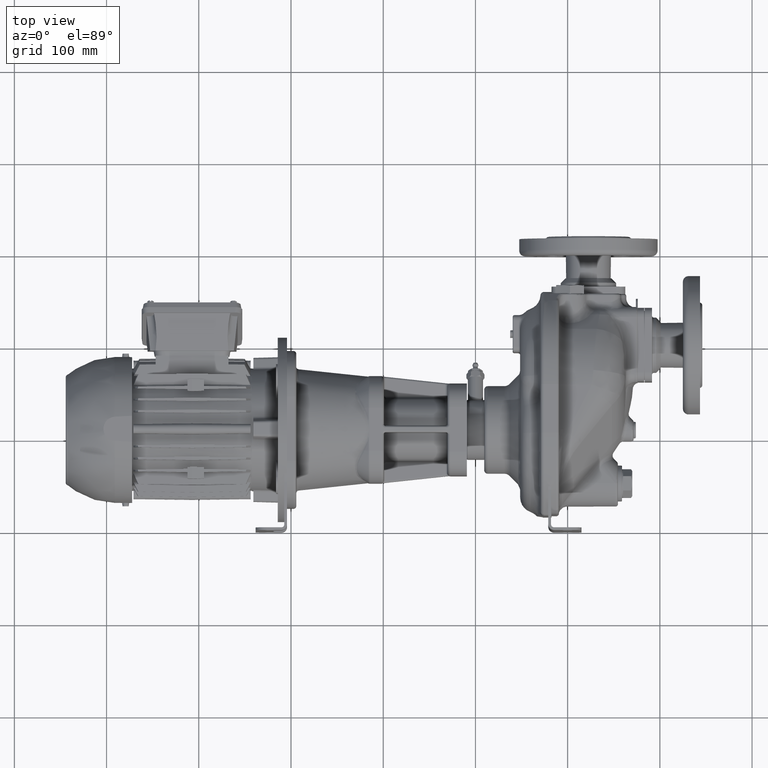
[diagram: clean part render]
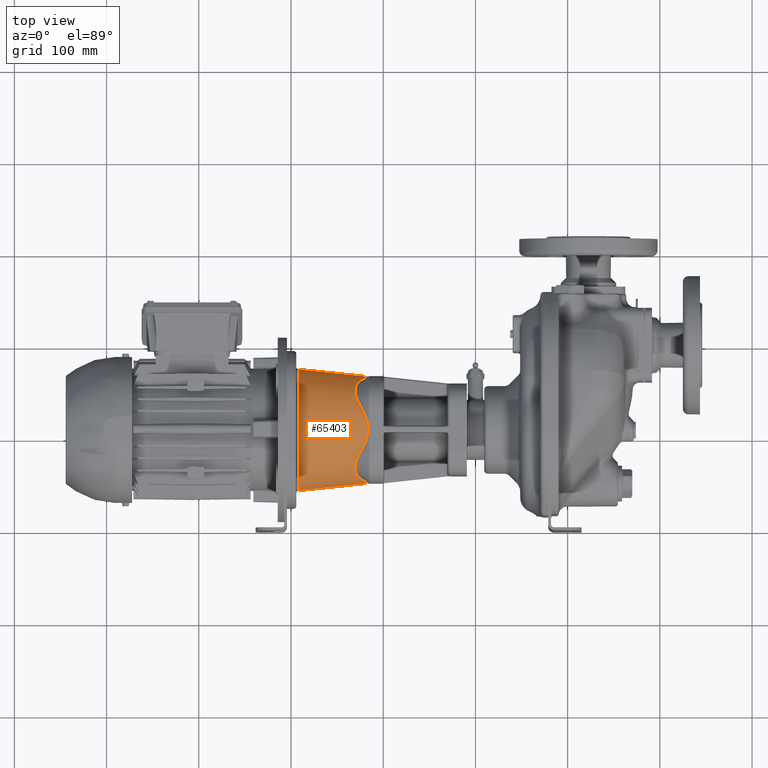
[diagram: same view with one face highlighted and labeled with its STEP entity id]
A machine part, top view. The second image highlights one B-rep face of the part: STEP entity #65403.
In plain terms, the highlighted conical surface has half-angle 6 deg.
Its self-contained STEP definition (entity closure, byte-faithful):
#12274=DIRECTION('',(9.945218953667E-1,1.045284632831E-1,0.E0));
#12275=VECTOR('',#12274,7.573120619177E1);
#12276=CARTESIAN_POINT('',(-2.916135853898E2,4.425481215539E1,0.E0));
#12277=LINE('',#12276,#12275);
#12291=CARTESIAN_POINT('',(-2.162972426696E2,5.217087876119E1,0.E0));
#12493=CARTESIAN_POINT('',(-2.162972426696E2,1.678291212388E2,0.E0));
#12518=CARTESIAN_POINT('',(-2.916135853898E2,1.1E2,0.E0));
#12519=DIRECTION('',(1.E0,0.E0,0.E0));
#12520=DIRECTION('',(0.E0,1.E0,0.E0));
#12521=AXIS2_PLACEMENT_3D('',#12518,#12519,#12520);
#12528=DIRECTION('',(9.945218953667E-1,-1.045284632831E-1,0.E0));
#12529=VECTOR('',#12528,7.573120619177E1);
#12530=CARTESIAN_POINT('',(-2.916135853898E2,1.757451878446E2,0.E0));
#12531=LINE('',#12530,#12529);
#12532=CARTESIAN_POINT('',(-2.178097378126E2,1.672505349841E2,
9.219269410111E0));
#12533=CARTESIAN_POINT('',(-2.177005226865E2,1.673099493707E2,
8.778112235931E0));
#12534=CARTESIAN_POINT('',(-2.174915754634E2,1.674150170355E2,
7.924130658812E0));
#12535=CARTESIAN_POINT('',(-2.172055254057E2,1.675396672499E2,
6.700549844646E0));
#12536=CARTESIAN_POINT('',(-2.169694715655E2,1.676296734439E2,
5.616791392303E0));
#12537=CARTESIAN_POINT('',(-2.167799745554E2,1.676942146431E2,
4.660967148453E0));
#12538=CARTESIAN_POINT('',(-2.166316234725E2,1.677400778674E2,
3.816670825657E0));
#12539=CARTESIAN_POINT('',(-2.165178106400E2,1.677725873519E2,
3.063959217461E0));
#12540=CARTESIAN_POINT('',(-2.164319662985E2,1.677955953305E2,
2.378711210692E0));
#12541=CARTESIAN_POINT('',(-2.163695598297E2,1.678115161030E2,
1.743964345912E0));
#12542=CARTESIAN_POINT('',(-2.163270718760E2,1.678219707538E2,
1.142382641696E0));
#12543=CARTESIAN_POINT('',(-2.163025002709E2,1.678278726256E2,
5.633297576727E-1));
#12544=CARTESIAN_POINT('',(-2.162972432330E2,1.678291212825E2,
1.859767206219E-1));
#12545=CARTESIAN_POINT('',(-2.162972426696E2,1.678291212388E2,0.E0));
#12547=CARTESIAN_POINT('',(-2.232081546717E2,1.643120255443E2,
2.188490304259E1));
#12548=CARTESIAN_POINT('',(-2.229975200607E2,1.644267440128E2,
2.154097052883E1));
#12549=CARTESIAN_POINT('',(-2.225890865486E2,1.646491753191E2,
2.085614097833E1));
#12550=CARTESIAN_POINT('',(-2.220143612581E2,1.649621301244E2,
1.983939274068E1));
#12551=CARTESIAN_POINT('',(-2.214757642771E2,1.652553785563E2,
1.883237292535E1));
#12552=CARTESIAN_POINT('',(-2.209719358071E2,1.655296669165E2,
1.783486057273E1));
#12553=CARTESIAN_POINT('',(-2.205015176788E2,1.657857406005E2,
1.684647944565E1));
#12554=CARTESIAN_POINT('',(-2.200632380201E2,1.660242969797E2,
1.586682939850E1));
#12555=CARTESIAN_POINT('',(-2.196559156630E2,1.662459837265E2,
1.489551216629E1));
#12556=CARTESIAN_POINT('',(-2.192784449588E2,1.664514068261E2,
1.393210561728E1));
#12557=CARTESIAN_POINT('',(-2.189297914882E2,1.666411328566E2,
1.297615286718E1));
#12558=CARTESIAN_POINT('',(-2.186090234181E2,1.668156723822E2,
1.202726252441E1));
#12559=CARTESIAN_POINT('',(-2.183152378263E2,1.669755193639E2,
1.108490174240E1));
#12560=CARTESIAN_POINT('',(-2.180476512485E2,1.671211032180E2,
1.014866873998E1));
#12561=CARTESIAN_POINT('',(-2.178862596533E2,1.672089055462E2,
9.528370867960E0));
#12562=CARTESIAN_POINT('',(-2.178097378126E2,1.672505349841E2,
9.219269410111E0));
#12564=CARTESIAN_POINT('',(-2.232081546717E2,1.318849030426E2,
5.431202554433E1));
#12565=CARTESIAN_POINT('',(-2.234349152213E2,1.322551664876E2,
5.418852436362E1));
#12566=CARTESIAN_POINT('',(-2.238755909167E2,1.329853657703E2,
5.393584133920E1));
#12567=CARTESIAN_POINT('',(-2.244981363058E2,1.340488395764E2,
5.354169726927E1));
#12568=CARTESIAN_POINT('',(-2.250835036914E2,1.350816337722E2,
5.313360777020E1));
#12569=CARTESIAN_POINT('',(-2.256326320819E2,1.360842986017E2,
5.271287126854E1));
#12570=CARTESIAN_POINT('',(-2.261465952011E2,1.370575955245E2,
5.228063969931E1));
#12571=CARTESIAN_POINT('',(-2.266266066729E2,1.380025663499E2,
5.183785016427E1));
#12572=CARTESIAN_POINT('',(-2.270738242720E2,1.389201858638E2,
5.138537249808E1));
#12573=CARTESIAN_POINT('',(-2.274894309560E2,1.398115271598E2,
5.092393363120E1));
#12574=CARTESIAN_POINT('',(-2.278745847926E2,1.406776807102E2,
5.045415082782E1));
#12575=CARTESIAN_POINT('',(-2.282304112199E2,1.415197490246E2,
4.997653493043E1));
#12576=CARTESIAN_POINT('',(-2.285579940461E2,1.423388392002E2,
4.949149395475E1));
#12577=CARTESIAN_POINT('',(-2.288583650015E2,1.431360491078E2,
4.899934163308E1));
#12578=CARTESIAN_POINT('',(-2.291324979025E2,1.439124600571E2,
4.850030334956E1));
#12579=CARTESIAN_POINT('',(-2.293813037674E2,1.446691303773E2,
4.799452205436E1));
#12580=CARTESIAN_POINT('',(-2.296056267614E2,1.454070905462E2,
4.748206357209E1));
#12581=CARTESIAN_POINT('',(-2.298062412679E2,1.461273390972E2,
4.696292170517E1));
#12582=CARTESIAN_POINT('',(-2.299838497135E2,1.468308395729E2,
4.643702277059E1));
#12583=CARTESIAN_POINT('',(-2.301390813552E2,1.475185174349E2,
4.590423034825E1));
#12584=CARTESIAN_POINT('',(-2.302724923790E2,1.481912585432E2,
4.536434897099E1));
#12585=CARTESIAN_POINT('',(-2.303845646918E2,1.488499083849E2,
4.481712684774E1));
#12586=CARTESIAN_POINT('',(-2.304757057531E2,1.494952712423E2,
4.426225853956E1));
#12587=CARTESIAN_POINT('',(-2.305462484598E2,1.501281093928E2,
4.369938738592E1));
#12588=CARTESIAN_POINT('',(-2.305964510096E2,1.507491420915E2,
4.312810791043E1));
#12589=CARTESIAN_POINT('',(-2.306264984536E2,1.513590459802E2,
4.254796687896E1));
#12590=CARTESIAN_POINT('',(-2.306365020409E2,1.519584544882E2,
4.195846460267E1));
#12591=CARTESIAN_POINT('',(-2.306264987893E2,1.525479574444E2,
4.135905574588E1));
#12592=CARTESIAN_POINT('',(-2.305964515920E2,1.531280997988E2,
4.074915077821E1));
#12593=CARTESIAN_POINT('',(-2.305462491983E2,1.536993805696E2,
4.012811694224E1));
#12594=CARTESIAN_POINT('',(-2.304757065747E2,1.542622529408E2,
3.949527765817E1));
#12595=CARTESIAN_POINT('',(-2.303845655265E2,1.548171223910E2,
3.884991367160E1));
#12596=CARTESIAN_POINT('',(-2.302724931592E2,1.553643455795E2,
3.819126271036E1));
#12597=CARTESIAN_POINT('',(-2.301390820198E2,1.559042279335E2,
3.751852051067E1));
#12598=CARTESIAN_POINT('',(-2.299838502074E2,1.564370212411E2,
3.683084159542E1));
#12599=CARTESIAN_POINT('',(-2.298062415457E2,1.569629209654E2,
3.612734011669E1));
#12600=CARTESIAN_POINT('',(-2.296056267915E2,1.574820635232E2,
3.540709062633E1));
#12601=CARTESIAN_POINT('',(-2.293813035268E2,1.579945225940E2,
3.466912959555E1));
#12602=CARTESIAN_POINT('',(-2.291324973795E2,1.585003043732E2,
3.391245850474E1));
#12603=CARTESIAN_POINT('',(-2.288583641972E2,1.589993430345E2,
3.313604689096E1));
#12604=CARTESIAN_POINT('',(-2.285579929768E2,1.594914956268E2,
3.233883644089E1));
#12605=CARTESIAN_POINT('',(-2.282304099196E2,1.599765367677E2,
3.151974585885E1));
#12606=CARTESIAN_POINT('',(-2.278745833067E2,1.604541527308E2,
3.067767728167E1));
#12607=CARTESIAN_POINT('',(-2.274894293542E2,1.609239354938E2,
2.981152364435E1));
#12608=CARTESIAN_POINT('',(-2.270738226266E2,1.613853742381E2,
2.892018241764E1));
#12609=CARTESIAN_POINT('',(-2.266266050812E2,1.618378516920E2,
2.800256316220E1));
#12610=CARTESIAN_POINT('',(-2.261465938667E2,1.622806408686E2,
2.705759295367E1));
#12611=CARTESIAN_POINT('',(-2.256326307991E2,1.627128722969E2,
2.608429621649E1));
#12612=CARTESIAN_POINT('',(-2.250835025754E2,1.631336085781E2,
2.508163177698E1));
#12613=CARTESIAN_POINT('',(-2.244981354664E2,1.635416978215E2,
2.404883812436E1));
#12614=CARTESIAN_POINT('',(-2.238755903078E2,1.639358416935E2,
2.298536476319E1));
#12615=CARTESIAN_POINT('',(-2.234349149998E2,1.641885244899E2,
2.225516611474E1));
#12616=CARTESIAN_POINT('',(-2.232081546717E2,1.643120255443E2,
2.188490304259E1));
#12618=CARTESIAN_POINT('',(-2.178097378126E2,1.192192694101E2,
5.725053498425E1));
#12619=CARTESIAN_POINT('',(-2.178862596511E2,1.195283708620E2,
5.720890554731E1));
#12620=CARTESIAN_POINT('',(-2.180476512444E2,1.201486687228E2,
5.712110322040E1));
#12621=CARTESIAN_POINT('',(-2.183152378190E2,1.210849017192E2,
5.697551936764E1));
#12622=CARTESIAN_POINT('',(-2.186090234066E2,1.220272624882E2,
5.681567238869E1));
#12623=CARTESIAN_POINT('',(-2.189297914902E2,1.229761528752E2,
5.664113285540E1));
#12624=CARTESIAN_POINT('',(-2.192784449895E2,1.239321056999E2,
5.645140680948E1));
#12625=CARTESIAN_POINT('',(-2.196559157277E2,1.248955123273E2,
5.624598369133E1));
#12626=CARTESIAN_POINT('',(-2.200632381185E2,1.258668296274E2,
5.602429692602E1));
#12627=CARTESIAN_POINT('',(-2.205015178170E2,1.268464797462E2,
5.578574052530E1));
#12628=CARTESIAN_POINT('',(-2.209719359785E2,1.278348609235E2,
5.552966682302E1));
#12629=CARTESIAN_POINT('',(-2.214757644649E2,1.288323732850E2,
5.525537845438E1));
#12630=CARTESIAN_POINT('',(-2.220143614521E2,1.298393930963E2,
5.496213001835E1));
#12631=CARTESIAN_POINT('',(-2.225890867932E2,1.308561413955E2,
5.464917518634E1));
#12632=CARTESIAN_POINT('',(-2.229975201619E2,1.315409706965E2,
5.442674395748E1));
#12633=CARTESIAN_POINT('',(-2.232081546717E2,1.318849030426E2,
5.431202554433E1));
#12635=CARTESIAN_POINT('',(-2.178097378126E2,1.007807305899E2,
5.725053498402E1));
#12636=CARTESIAN_POINT('',(-2.176893768314E2,1.012669097686E2,
5.731601286853E1));
#12637=CARTESIAN_POINT('',(-2.174606703060E2,1.022028283348E2,
5.743000364914E1));
#12638=CARTESIAN_POINT('',(-2.171529704160E2,1.035303760746E2,
5.756113449320E1));
#12639=CARTESIAN_POINT('',(-2.169072417140E2,1.046828120922E2,
5.765185821825E1));
#12640=CARTESIAN_POINT('',(-2.167154289251E2,1.056886742834E2,
5.771481192199E1));
#12641=CARTESIAN_POINT('',(-2.165704924825E2,1.065675933651E2,
5.775790159412E1));
#12642=CARTESIAN_POINT('',(-2.164630425618E2,1.073508650567E2,
5.778745763522E1));
#12643=CARTESIAN_POINT('',(-2.163858105619E2,1.080660772472E2,
5.780745589264E1));
#12644=CARTESIAN_POINT('',(-2.163338039981E2,1.087346416756E2,
5.782034254882E1));
#12645=CARTESIAN_POINT('',(-2.163037866822E2,1.093742561801E2,
5.782756850918E1));
#12646=CARTESIAN_POINT('',(-2.162939706753E2,1.099999992081E2,
5.782989760203E1));
#12647=CARTESIAN_POINT('',(-2.163037866333E2,1.106257419728E2,
5.782756852255E1));
#12648=CARTESIAN_POINT('',(-2.163338038613E2,1.112653562230E2,
5.782034258068E1));
#12649=CARTESIAN_POINT('',(-2.163858103829E2,1.119339207813E2,
5.780745593887E1));
#12650=CARTESIAN_POINT('',(-2.164630422779E2,1.126491326812E2,
5.778745771038E1));
#12651=CARTESIAN_POINT('',(-2.165704921691E2,1.134324044938E2,
5.775790168196E1));
#12652=CARTESIAN_POINT('',(-2.167154283231E2,1.143113224435E2,
5.771481211207E1));
#12653=CARTESIAN_POINT('',(-2.169072417092E2,1.153171879559E2,
5.765185822274E1));
#12654=CARTESIAN_POINT('',(-2.171529704694E2,1.164696242163E2,
5.756113448371E1));
#12655=CARTESIAN_POINT('',(-2.174606712664E2,1.177971756740E2,
5.743000321683E1));
#12656=CARTESIAN_POINT('',(-2.176893772452E2,1.187330919630E2,
5.731601263488E1));
#12657=CARTESIAN_POINT('',(-2.178097378126E2,1.192192694101E2,
5.725053498425E1));
#12659=CARTESIAN_POINT('',(-2.232081546717E2,8.811509695741E1,
5.431202554425E1));
#12660=CARTESIAN_POINT('',(-2.229975200610E2,8.845902947068E1,
5.442674401264E1));
#12661=CARTESIAN_POINT('',(-2.225890865494E2,8.914385902030E1,
5.464917531869E1));
#12662=CARTESIAN_POINT('',(-2.220143612594E2,9.016060725710E1,
5.496213012376E1));
#12663=CARTESIAN_POINT('',(-2.214757642786E2,9.116762707179E1,
5.525537855548E1));
#12664=CARTESIAN_POINT('',(-2.209719358090E2,9.216513942350E1,
5.552966691551E1));
#12665=CARTESIAN_POINT('',(-2.205015176811E2,9.315352054953E1,
5.578574059926E1));
#12666=CARTESIAN_POINT('',(-2.200632380228E2,9.413317059537E1,
5.602429697820E1));
#12667=CARTESIAN_POINT('',(-2.196559156663E2,9.510448782564E1,
5.624598372471E1));
#12668=CARTESIAN_POINT('',(-2.192784449624E2,9.606789437326E1,
5.645140682413E1));
#12669=CARTESIAN_POINT('',(-2.189297914921E2,9.702384712172E1,
5.664113285449E1));
#12670=CARTESIAN_POINT('',(-2.186090234213E2,9.797273746584E1,
5.681567238049E1));
#12671=CARTESIAN_POINT('',(-2.183152378300E2,9.891509824547E1,
5.697551936196E1));
#12672=CARTESIAN_POINT('',(-2.180476512510E2,9.985133125089E1,
5.712110321670E1));
#12673=CARTESIAN_POINT('',(-2.178862596542E2,1.004716291284E2,
5.720890554566E1));
#12674=CARTESIAN_POINT('',(-2.178097378126E2,1.007807305899E2,
5.725053498402E1));
#12676=CARTESIAN_POINT('',(-2.232081546717E2,5.568797445567E1,
2.188490304262E1));
#12677=CARTESIAN_POINT('',(-2.234349152229E2,5.581147563726E1,
2.225516649030E1));
#12678=CARTESIAN_POINT('',(-2.238755909209E2,5.606415866331E1,
2.298536577744E1));
#12679=CARTESIAN_POINT('',(-2.244981363118E2,5.645830273472E1,
2.404883958694E1));
#12680=CARTESIAN_POINT('',(-2.250835036982E2,5.686639223477E1,
2.508163378436E1));
#12681=CARTESIAN_POINT('',(-2.256326320878E2,5.728712873616E1,
2.608429861262E1));
#12682=CARTESIAN_POINT('',(-2.261465952074E2,5.771936030617E1,
2.705759553655E1));
#12683=CARTESIAN_POINT('',(-2.266266066780E2,5.816214984069E1,
2.800256636018E1));
#12684=CARTESIAN_POINT('',(-2.270738242769E2,5.861462750716E1,
2.892018587419E1));
#12685=CARTESIAN_POINT('',(-2.274894309608E2,5.907606637436E1,
2.981152717030E1));
#12686=CARTESIAN_POINT('',(-2.278745847970E2,5.954584917784E1,
3.067768072044E1));
#12687=CARTESIAN_POINT('',(-2.282304112240E2,6.002346507538E1,
3.151974903462E1));
#12688=CARTESIAN_POINT('',(-2.285579940498E2,6.050850605109E1,
3.233883920986E1));
#12689=CARTESIAN_POINT('',(-2.288583650049E2,6.100065837279E1,
3.313604911712E1));
#12690=CARTESIAN_POINT('',(-2.291324979058E2,6.149969665672E1,
3.391246006665E1));
#12691=CARTESIAN_POINT('',(-2.293813037705E2,6.200547795225E1,
3.466913038699E1));
#12692=CARTESIAN_POINT('',(-2.296056267640E2,6.251793643453E1,
3.540709055552E1));
#12693=CARTESIAN_POINT('',(-2.298062412703E2,6.303707830144E1,
3.612733910617E1));
#12694=CARTESIAN_POINT('',(-2.299838497159E2,6.356297723707E1,
3.683083958297E1));
#12695=CARTESIAN_POINT('',(-2.301390813573E2,6.409576965914E1,
3.751851744426E1));
#12696=CARTESIAN_POINT('',(-2.302724923809E2,6.463565103737E1,
3.819125855347E1));
#12697=CARTESIAN_POINT('',(-2.303845646933E2,6.518287316056E1,
3.884990839471E1));
#12698=CARTESIAN_POINT('',(-2.304757057543E2,6.573774146846E1,
3.949527125145E1));
#12699=CARTESIAN_POINT('',(-2.305462484609E2,6.630061262450E1,
4.012810940432E1));
#12700=CARTESIAN_POINT('',(-2.305964510103E2,6.687189209864E1,
4.074914210124E1));
#12701=CARTESIAN_POINT('',(-2.306264984539E2,6.745203313172E1,
4.135904599129E1));
#12702=CARTESIAN_POINT('',(-2.306365020409E2,6.804153540915E1,
4.195845449998E1));
#12703=CARTESIAN_POINT('',(-2.306264987890E2,6.864094426460E1,
4.254795745450E1));
#12704=CARTESIAN_POINT('',(-2.305964515913E2,6.925084923075E1,
4.312809980720E1));
#12705=CARTESIAN_POINT('',(-2.305462491973E2,6.987188306864E1,
4.369938057944E1));
#12706=CARTESIAN_POINT('',(-2.304757065736E2,7.050472235043E1,
4.426225294831E1));
#12707=CARTESIAN_POINT('',(-2.303845655251E2,7.115008633761E1,
4.481712239883E1));
#12708=CARTESIAN_POINT('',(-2.302724931574E2,7.180873729929E1,
4.536434558733E1));
#12709=CARTESIAN_POINT('',(-2.301390820178E2,7.248147949815E1,
4.590422794041E1));
#12710=CARTESIAN_POINT('',(-2.299838502052E2,7.316915841410E1,
4.643702124830E1));
#12711=CARTESIAN_POINT('',(-2.298062415434E2,7.387265989182E1,
4.696292097160E1));
#12712=CARTESIAN_POINT('',(-2.296056267890E2,7.459290938251E1,
4.748206352947E1));
#12713=CARTESIAN_POINT('',(-2.293813035239E2,7.533087041367E1,
4.799452260029E1));
#12714=CARTESIAN_POINT('',(-2.291324973763E2,7.608754150439E1,
4.850030437917E1));
#12715=CARTESIAN_POINT('',(-2.288583641940E2,7.686395311793E1,
4.899934304012E1));
#12716=CARTESIAN_POINT('',(-2.285579929732E2,7.766116356835E1,
4.949149563240E1));
#12717=CARTESIAN_POINT('',(-2.282304099156E2,7.848025415078E1,
4.997653677330E1));
#12718=CARTESIAN_POINT('',(-2.278745833024E2,7.932232272819E1,
5.045415273625E1));
#12719=CARTESIAN_POINT('',(-2.274894293495E2,8.018847636583E1,
5.092393549922E1));
#12720=CARTESIAN_POINT('',(-2.270738226218E2,8.107981759247E1,
5.138537424319E1));
#12721=CARTESIAN_POINT('',(-2.266266050762E2,8.199743684789E1,
5.183785169689E1));
#12722=CARTESIAN_POINT('',(-2.261465938605E2,8.294240705819E1,
5.228064087404E1));
#12723=CARTESIAN_POINT('',(-2.256326307933E2,8.391570379429E1,
5.271287230151E1));
#12724=CARTESIAN_POINT('',(-2.250835025686E2,8.491836823521E1,
5.313360858311E1));
#12725=CARTESIAN_POINT('',(-2.244981354603E2,8.595116188624E1,
5.354169782554E1));
#12726=CARTESIAN_POINT('',(-2.238755903035E2,8.701463524412E1,
5.393584169610E1));
#12727=CARTESIAN_POINT('',(-2.234349149981E2,8.774483388801E1,
5.418852449078E1));
#12728=CARTESIAN_POINT('',(-2.232081546717E2,8.811509695741E1,
5.431202554425E1));
#12730=CARTESIAN_POINT('',(-2.178097378126E2,5.274946501571E1,
9.219269410149E0));
#12731=CARTESIAN_POINT('',(-2.178862596502E2,5.279109445216E1,
9.528370858314E0));
#12732=CARTESIAN_POINT('',(-2.180476512420E2,5.287889677829E1,
1.014866871366E1));
#12733=CARTESIAN_POINT('',(-2.183152378154E2,5.302448063038E1,
1.108490170705E1));
#12734=CARTESIAN_POINT('',(-2.186090234034E2,5.318432760958E1,
1.202726247843E1));
#12735=CARTESIAN_POINT('',(-2.189297914863E2,5.335886714248E1,
1.297615286404E1));
#12736=CARTESIAN_POINT('',(-2.192784449859E2,5.354859318856E1,
1.393210569045E1));
#12737=CARTESIAN_POINT('',(-2.196559157244E2,5.375401630688E1,
1.489551231920E1));
#12738=CARTESIAN_POINT('',(-2.200632381158E2,5.397570307251E1,
1.586682962121E1));
#12739=CARTESIAN_POINT('',(-2.205015178147E2,5.421425947347E1,
1.684647974131E1));
#12740=CARTESIAN_POINT('',(-2.209719359767E2,5.447033317595E1,
1.783486091967E1));
#12741=CARTESIAN_POINT('',(-2.214757644634E2,5.474462154479E1,
1.883237328213E1));
#12742=CARTESIAN_POINT('',(-2.220143614509E2,5.503786998096E1,
1.983939309405E1));
#12743=CARTESIAN_POINT('',(-2.225890867923E2,5.535082481320E1,
2.085614139408E1));
#12744=CARTESIAN_POINT('',(-2.229975201616E2,5.557325604235E1,
2.154097069594E1));
#12745=CARTESIAN_POINT('',(-2.232081546717E2,5.568797445567E1,
2.188490304262E1));
#12747=CARTESIAN_POINT('',(-2.162972426696E2,5.217087876119E1,0.E0));
#12748=CARTESIAN_POINT('',(-2.162972433850E2,5.217087870332E1,
1.859806488364E-1));
#12749=CARTESIAN_POINT('',(-2.163025001149E2,5.217212739834E1,
5.633440673361E-1));
#12750=CARTESIAN_POINT('',(-2.163270751979E2,5.217803004827E1,
1.142447372825E0));
#12751=CARTESIAN_POINT('',(-2.163695659722E2,5.218848540621E1,
1.744032526539E0));
#12752=CARTESIAN_POINT('',(-2.164319694236E2,5.220440551025E1,
2.378735292309E0));
#12753=CARTESIAN_POINT('',(-2.165178096278E2,5.222741238652E1,
3.063951234398E0));
#12754=CARTESIAN_POINT('',(-2.166316221534E2,5.225992174034E1,
3.816663010423E0));
#12755=CARTESIAN_POINT('',(-2.167799737725E2,5.230578508615E1,
4.660963508182E0));
#12756=CARTESIAN_POINT('',(-2.169694742560E2,5.237032749060E1,
5.616804814798E0));
#12757=CARTESIAN_POINT('',(-2.172055303495E2,5.246033473873E1,
6.700571666475E0));
#12758=CARTESIAN_POINT('',(-2.174915805080E2,5.258498536816E1,
7.924151486400E0));
#12759=CARTESIAN_POINT('',(-2.177005247892E2,5.269005178287E1,
8.778120796653E0));
#12760=CARTESIAN_POINT('',(-2.178097378126E2,5.274946501571E1,
9.219269410149E0));
#41703=CARTESIAN_POINT('',(-2.916135853898E2,1.757451878446E2,0.E0));
#41704=VERTEX_POINT('',#41703);
#41771=VERTEX_POINT('',#12547);
#41772=VERTEX_POINT('',#12562);
#41775=VERTEX_POINT('',#12493);
#41792=VERTEX_POINT('',#12291);
#41795=VERTEX_POINT('',#12730);
#41796=VERTEX_POINT('',#12745);
#41798=VERTEX_POINT('',#12728);
#41800=VERTEX_POINT('',#12674);
#41802=VERTEX_POINT('',#12657);
#41804=VERTEX_POINT('',#12633);
#41805=CARTESIAN_POINT('',(-2.916135853898E2,4.425481215539E1,0.E0));
#41806=VERTEX_POINT('',#41805);
#65383=CARTESIAN_POINT('',(-2.539554140296E2,1.1E2,0.E0));
#65384=DIRECTION('',(-1.E0,0.E0,0.E0));
#65385=DIRECTION('',(0.E0,-1.E0,0.E0));
#65386=AXIS2_PLACEMENT_3D('',#65383,#65384,#65385);
#65387=CONICAL_SURFACE('',#65386,6.178715454229E1,6.E0);
#65388=ORIENTED_EDGE('',*,*,#65338,.F.);
#65389=ORIENTED_EDGE('',*,*,#65374,.F.);
#65390=ORIENTED_EDGE('',*,*,#65349,.T.);
#65391=ORIENTED_EDGE('',*,*,#63940,.F.);
#65392=ORIENTED_EDGE('',*,*,#64014,.F.);
#65393=ORIENTED_EDGE('',*,*,#64235,.F.);
#65394=ORIENTED_EDGE('',*,*,#64310,.F.);
#65395=ORIENTED_EDGE('',*,*,#64466,.F.);
#65396=ORIENTED_EDGE('',*,*,#64541,.F.);
#65397=ORIENTED_EDGE('',*,*,#64762,.F.);
#65398=ORIENTED_EDGE('',*,*,#64837,.F.);
#65400=ORIENTED_EDGE('',*,*,#65399,.F.);
#65401=EDGE_LOOP('',(#65388,#65389,#65390,#65391,#65392,#65393,#65394,#65395,
#65396,#65397,#65398,#65400));
#65402=FACE_OUTER_BOUND('',#65401,.F.);
#65403=ADVANCED_FACE('',(#65402),#65387,.T.);
#12522=CIRCLE('',#12521,6.574518784461E1);
#12546=B_SPLINE_CURVE_WITH_KNOTS('',3,(#12532,#12533,#12534,#12535,#12536,
#12537,#12538,#12539,#12540,#12541,#12542,#12543,#12544,#12545),.UNSPECIFIED.,
.F.,.F.,(4,1,1,1,1,1,1,1,1,1,1,4),(0.E0,9.090909090909E-2,1.818181818182E-1,
2.727272727273E-1,3.636363636364E-1,4.545454545455E-1,5.454545454545E-1,
6.363636363636E-1,7.272727272727E-1,8.181818181818E-1,9.090909090909E-1,1.E0),
.UNSPECIFIED.);
#12563=B_SPLINE_CURVE_WITH_KNOTS('',3,(#12547,#12548,#12549,#12550,#12551,
#12552,#12553,#12554,#12555,#12556,#12557,#12558,#12559,#12560,#12561,#12562),
.UNSPECIFIED.,.F.,.F.,(4,1,1,1,1,1,1,1,1,1,1,1,1,4),(0.E0,7.692307692308E-2,
1.538461538462E-1,2.307692307692E-1,3.076923076923E-1,3.846153846154E-1,
4.615384615385E-1,5.384615384615E-1,6.153846153846E-1,6.923076923077E-1,
7.692307692308E-1,8.461538461538E-1,9.230769230769E-1,1.E0),.UNSPECIFIED.);
#12617=B_SPLINE_CURVE_WITH_KNOTS('',3,(#12564,#12565,#12566,#12567,#12568,
#12569,#12570,#12571,#12572,#12573,#12574,#12575,#12576,#12577,#12578,#12579,
#12580,#12581,#12582,#12583,#12584,#12585,#12586,#12587,#12588,#12589,#12590,
#12591,#12592,#12593,#12594,#12595,#12596,#12597,#12598,#12599,#12600,#12601,
#12602,#12603,#12604,#12605,#12606,#12607,#12608,#12609,#12610,#12611,#12612,
#12613,#12614,#12615,#12616),.UNSPECIFIED.,.F.,.F.,(4,1,1,1,1,1,1,1,1,1,1,1,1,1,
1,1,1,1,1,1,1,1,1,1,1,1,1,1,1,1,1,1,1,1,1,1,1,1,1,1,1,1,1,1,1,1,1,1,1,1,4),
(0.E0,2.E-2,4.E-2,6.E-2,8.E-2,1.E-1,1.2E-1,1.4E-1,1.6E-1,1.8E-1,2.E-1,2.2E-1,
2.4E-1,2.6E-1,2.8E-1,3.E-1,3.2E-1,3.4E-1,3.6E-1,3.8E-1,4.E-1,4.2E-1,4.4E-1,
4.6E-1,4.8E-1,5.E-1,5.2E-1,5.4E-1,5.6E-1,5.8E-1,6.E-1,6.2E-1,6.4E-1,6.6E-1,
6.8E-1,7.E-1,7.2E-1,7.4E-1,7.6E-1,7.8E-1,8.E-1,8.2E-1,8.4E-1,8.6E-1,8.8E-1,
9.E-1,9.2E-1,9.4E-1,9.6E-1,9.8E-1,1.E0),.UNSPECIFIED.);
#12634=B_SPLINE_CURVE_WITH_KNOTS('',3,(#12618,#12619,#12620,#12621,#12622,
#12623,#12624,#12625,#12626,#12627,#12628,#12629,#12630,#12631,#12632,#12633),
.UNSPECIFIED.,.F.,.F.,(4,1,1,1,1,1,1,1,1,1,1,1,1,4),(0.E0,7.692307692308E-2,
1.538461538462E-1,2.307692307692E-1,3.076923076923E-1,3.846153846154E-1,
4.615384615385E-1,5.384615384615E-1,6.153846153846E-1,6.923076923077E-1,
7.692307692308E-1,8.461538461538E-1,9.230769230769E-1,1.E0),.UNSPECIFIED.);
#12658=B_SPLINE_CURVE_WITH_KNOTS('',3,(#12635,#12636,#12637,#12638,#12639,
#12640,#12641,#12642,#12643,#12644,#12645,#12646,#12647,#12648,#12649,#12650,
#12651,#12652,#12653,#12654,#12655,#12656,#12657),.UNSPECIFIED.,.F.,.F.,(4,1,1,
1,1,1,1,1,1,1,1,1,1,1,1,1,1,1,1,1,4),(0.E0,5.E-2,1.E-1,1.5E-1,2.E-1,2.5E-1,
3.E-1,3.5E-1,4.E-1,4.5E-1,5.E-1,5.5E-1,6.E-1,6.5E-1,7.E-1,7.5E-1,8.E-1,8.5E-1,
9.E-1,9.5E-1,1.E0),.UNSPECIFIED.);
#12675=B_SPLINE_CURVE_WITH_KNOTS('',3,(#12659,#12660,#12661,#12662,#12663,
#12664,#12665,#12666,#12667,#12668,#12669,#12670,#12671,#12672,#12673,#12674),
.UNSPECIFIED.,.F.,.F.,(4,1,1,1,1,1,1,1,1,1,1,1,1,4),(0.E0,7.692307692308E-2,
1.538461538462E-1,2.307692307692E-1,3.076923076923E-1,3.846153846154E-1,
4.615384615385E-1,5.384615384615E-1,6.153846153846E-1,6.923076923077E-1,
7.692307692308E-1,8.461538461538E-1,9.230769230769E-1,1.E0),.UNSPECIFIED.);
#12729=B_SPLINE_CURVE_WITH_KNOTS('',3,(#12676,#12677,#12678,#12679,#12680,
#12681,#12682,#12683,#12684,#12685,#12686,#12687,#12688,#12689,#12690,#12691,
#12692,#12693,#12694,#12695,#12696,#12697,#12698,#12699,#12700,#12701,#12702,
#12703,#12704,#12705,#12706,#12707,#12708,#12709,#12710,#12711,#12712,#12713,
#12714,#12715,#12716,#12717,#12718,#12719,#12720,#12721,#12722,#12723,#12724,
#12725,#12726,#12727,#12728),.UNSPECIFIED.,.F.,.F.,(4,1,1,1,1,1,1,1,1,1,1,1,1,1,
1,1,1,1,1,1,1,1,1,1,1,1,1,1,1,1,1,1,1,1,1,1,1,1,1,1,1,1,1,1,1,1,1,1,1,1,4),
(0.E0,2.E-2,4.E-2,6.E-2,8.E-2,1.E-1,1.2E-1,1.4E-1,1.6E-1,1.8E-1,2.E-1,2.2E-1,
2.4E-1,2.6E-1,2.8E-1,3.E-1,3.2E-1,3.4E-1,3.6E-1,3.8E-1,4.E-1,4.2E-1,4.4E-1,
4.6E-1,4.8E-1,5.E-1,5.2E-1,5.4E-1,5.6E-1,5.8E-1,6.E-1,6.2E-1,6.4E-1,6.6E-1,
6.8E-1,7.E-1,7.2E-1,7.4E-1,7.6E-1,7.8E-1,8.E-1,8.2E-1,8.4E-1,8.6E-1,8.8E-1,
9.E-1,9.2E-1,9.4E-1,9.6E-1,9.8E-1,1.E0),.UNSPECIFIED.);
#12746=B_SPLINE_CURVE_WITH_KNOTS('',3,(#12730,#12731,#12732,#12733,#12734,
#12735,#12736,#12737,#12738,#12739,#12740,#12741,#12742,#12743,#12744,#12745),
.UNSPECIFIED.,.F.,.F.,(4,1,1,1,1,1,1,1,1,1,1,1,1,4),(0.E0,7.692307692308E-2,
1.538461538462E-1,2.307692307692E-1,3.076923076923E-1,3.846153846154E-1,
4.615384615385E-1,5.384615384615E-1,6.153846153846E-1,6.923076923077E-1,
7.692307692308E-1,8.461538461538E-1,9.230769230769E-1,1.E0),.UNSPECIFIED.);
#12761=B_SPLINE_CURVE_WITH_KNOTS('',3,(#12747,#12748,#12749,#12750,#12751,
#12752,#12753,#12754,#12755,#12756,#12757,#12758,#12759,#12760),.UNSPECIFIED.,
.F.,.F.,(4,1,1,1,1,1,1,1,1,1,1,4),(0.E0,9.090909090909E-2,1.818181818182E-1,
2.727272727273E-1,3.636363636364E-1,4.545454545455E-1,5.454545454545E-1,
6.363636363636E-1,7.272727272727E-1,8.181818181818E-1,9.090909090909E-1,1.E0),
.UNSPECIFIED.);
#63940=EDGE_CURVE('',#41772,#41775,#12546,.T.);
#64014=EDGE_CURVE('',#41771,#41772,#12563,.T.);
#64235=EDGE_CURVE('',#41804,#41771,#12617,.T.);
#64310=EDGE_CURVE('',#41802,#41804,#12634,.T.);
#64466=EDGE_CURVE('',#41800,#41802,#12658,.T.);
#64541=EDGE_CURVE('',#41798,#41800,#12675,.T.);
#64762=EDGE_CURVE('',#41796,#41798,#12729,.T.);
#64837=EDGE_CURVE('',#41795,#41796,#12746,.T.);
#65338=EDGE_CURVE('',#41806,#41792,#12277,.T.);
#65349=EDGE_CURVE('',#41704,#41775,#12531,.T.);
#65374=EDGE_CURVE('',#41704,#41806,#12522,.T.);
#65399=EDGE_CURVE('',#41792,#41795,#12761,.T.);